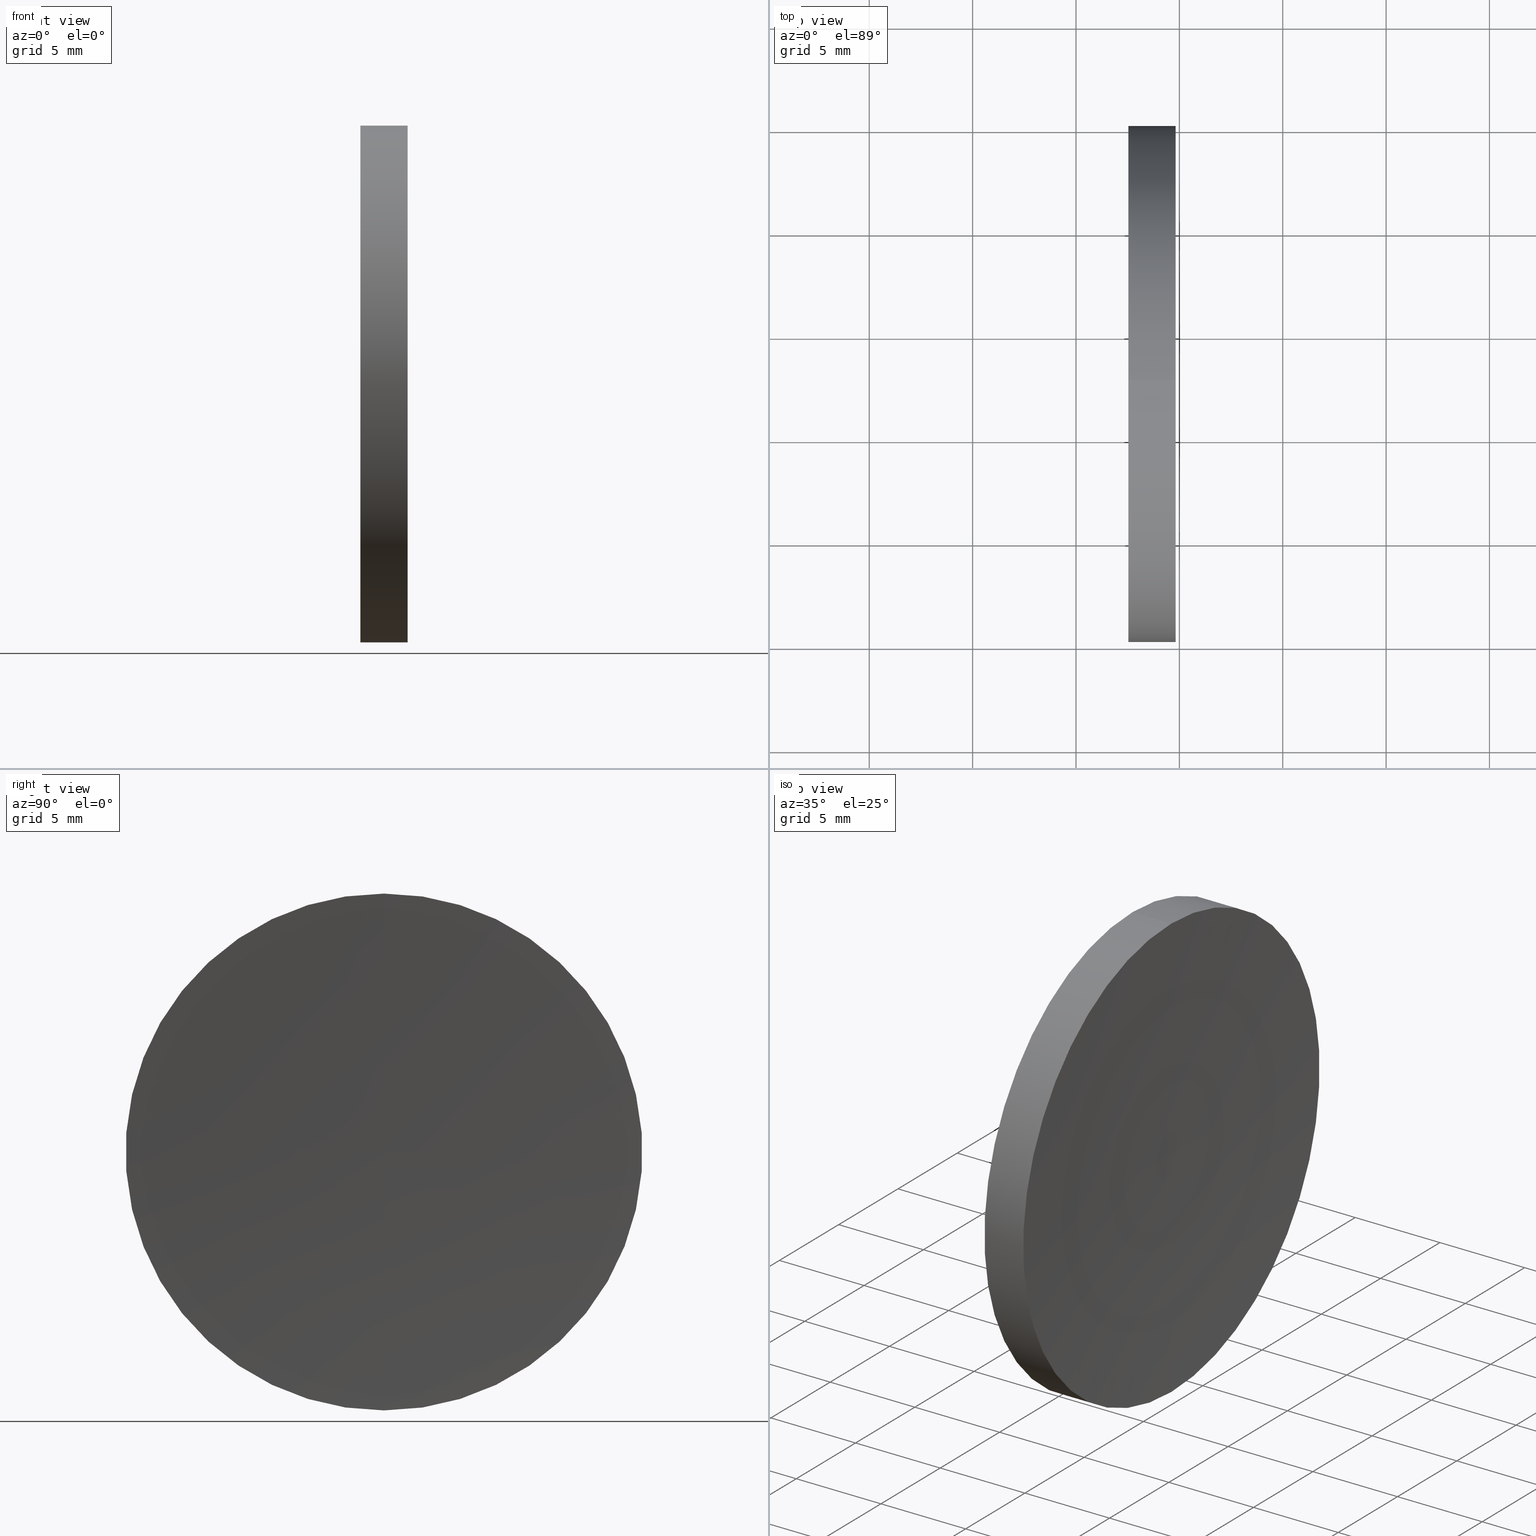
[diagram: canonical four-view strip — front | top / right | iso, engineering-drawing reading convention]
A machine part, canonical four-view strip (front | top / right | iso — engineering-drawing reading convention). The complete STEP part file that produces these views, byte-faithful:
ISO-10303-21;
HEADER;
FILE_DESCRIPTION (( 'STEP AP214' ),
    '1' );
FILE_NAME ('120041.STEP',
    '2019-06-17T06:06:20',
    ( '' ),
    ( '' ),
    'SwSTEP 2.0',
    'SolidWorks 2016',
    '' );
FILE_SCHEMA (( 'AUTOMOTIVE_DESIGN' ));
ENDSEC;

DATA;
#1 = DIRECTION ( 'NONE',  ( -1.000000000000000000, -0.0000000000000000000, -0.0000000000000000000 ) ) ;
#2 = STYLED_ITEM ( 'NONE', ( #79 ), #28 ) ;
#3 = DIRECTION ( 'NONE',  ( -1.000000000000000000, -0.0000000000000000000, -0.0000000000000000000 ) ) ;
#4 = CIRCLE ( 'NONE', #25, 258.1799999999999500 ) ;
#5 =( NAMED_UNIT ( * ) PLANE_ANGLE_UNIT ( ) SI_UNIT ( $, .RADIAN. ) );
#6 = CARTESIAN_POINT ( 'NONE',  ( 317.7121700755695300, 32.61076812922678400, 0.0000000000000000000 ) ) ;
#7 = DIRECTION ( 'NONE',  ( -1.000000000000000000, -0.0000000000000000000, -0.0000000000000000000 ) ) ;
#8 = DIRECTION ( 'NONE',  ( 0.0000000000000000000, 0.0000000000000000000, 1.000000000000000000 ) ) ;
#9 = DIRECTION ( 'NONE',  ( 0.0000000000000000000, 0.0000000000000000000, 1.000000000000000000 ) ) ;
#10 = FILL_AREA_STYLE_COLOUR ( '', #149 ) ;
#11 = CIRCLE ( 'NONE', #154, 12.49999999999999600 ) ;
#12 = DIRECTION ( 'NONE',  ( 0.0000000000000000000, 0.0000000000000000000, 1.000000000000000000 ) ) ;
#13 = AXIS2_PLACEMENT_3D ( 'NONE', #118, #120, #131 ) ;
#14 = FACE_OUTER_BOUND ( 'NONE', #145, .T. ) ;
#15 = DIRECTION ( 'NONE',  ( -1.000000000000000000, -0.0000000000000000000, -0.0000000000000000000 ) ) ;
#16 = VERTEX_POINT ( 'NONE', #114 ) ;
#17 =( NAMED_UNIT ( * ) PLANE_ANGLE_UNIT ( ) SI_UNIT ( $, .RADIAN. ) );
#18 = SURFACE_STYLE_FILL_AREA ( #70 ) ;
#19 =( LENGTH_UNIT ( ) NAMED_UNIT ( * ) SI_UNIT ( .MILLI., .METRE. ) );
#20 = VERTEX_POINT ( 'NONE', #160 ) ;
#21 = CIRCLE ( 'NONE', #64, 12.49999999999999600 ) ;
#22 = APPLICATION_CONTEXT ( 'automotive_design' ) ;
#23 =( LENGTH_UNIT ( ) NAMED_UNIT ( * ) SI_UNIT ( .MILLI., .METRE. ) );
#24 = APPLICATION_PROTOCOL_DEFINITION ( 'draft international standard', 'automotive_design', 1998, #22 ) ;
#25 = AXIS2_PLACEMENT_3D ( 'NONE', #164, #105, #76 ) ;
#26 = FACE_OUTER_BOUND ( 'NONE', #48, .T. ) ;
#27 = ORIENTED_EDGE ( 'NONE', *, *, #147, .T. ) ;
#28 = ADVANCED_BREP_SHAPE_REPRESENTATION ( '120041', ( #104, #86 ), #119 ) ;
#29 = CARTESIAN_POINT ( 'NONE',  ( 57.53233705252611700, 32.61076812922678400, 0.0000000000000000000 ) ) ;
#30 = CARTESIAN_POINT ( 'NONE',  ( 59.82088096594833400, 32.61076812922678400, 0.0000000000000000000 ) ) ;
#31 = AXIS2_PLACEMENT_3D ( 'NONE', #128, #153, #12 ) ;
#32 = VERTEX_POINT ( 'NONE', #46 ) ;
#33 = CARTESIAN_POINT ( 'NONE',  ( 59.82088096594834100, 32.61076812922678400, -12.49999999999963900 ) ) ;
#34 = FILL_AREA_STYLE_COLOUR ( '', #89 ) ;
#35 = ORIENTED_EDGE ( 'NONE', *, *, #148, .F. ) ;
#36 = ORIENTED_EDGE ( 'NONE', *, *, #125, .F. ) ;
#37 = PRODUCT_DEFINITION_CONTEXT ( 'detailed design', #113, 'design' ) ;
#38 = CYLINDRICAL_SURFACE ( 'NONE', #31, 12.49999999999999600 ) ;
#39 = DIRECTION ( 'NONE',  ( -1.000000000000000000, -0.0000000000000000000, -0.0000000000000000000 ) ) ;
#40 = CIRCLE ( 'NONE', #99, 12.49999999999999600 ) ;
#41 = PLANE ( 'NONE',  #92 ) ;
#42 = FACE_OUTER_BOUND ( 'NONE', #162, .T. ) ;
#43 = SURFACE_STYLE_FILL_AREA ( #100 ) ;
#44 = SHAPE_DEFINITION_REPRESENTATION ( #150, #28 ) ;
#45 = DIRECTION ( 'NONE',  ( -1.000000000000000000, -0.0000000000000000000, -0.0000000000000000000 ) ) ;
#46 = CARTESIAN_POINT ( 'NONE',  ( 59.53233705252619500, 32.61076812922678400, 0.0000000000000000000 ) ) ;
#47 =( NAMED_UNIT ( * ) SI_UNIT ( $, .STERADIAN. ) SOLID_ANGLE_UNIT ( ) );
#48 = EDGE_LOOP ( 'NONE', ( #140, #80, #35 ) ) ;
#49 = PRESENTATION_LAYER_ASSIGNMENT (  '', '', ( #54 ) ) ;
#50 = CYLINDRICAL_SURFACE ( 'NONE', #116, 12.49999999999999600 ) ;
#51 = ADVANCED_FACE ( 'NONE', ( #14 ), #56, .F. ) ;
#52 = EDGE_LOOP ( 'NONE', ( #98, #101, #27, #93 ) ) ;
#53 = DIRECTION ( 'NONE',  ( 0.0000000000000000000, 0.0000000000000000000, 1.000000000000000000 ) ) ;
#54 = STYLED_ITEM ( 'NONE', ( #87 ), #104 ) ;
#55 = ORIENTED_EDGE ( 'NONE', *, *, #125, .T. ) ;
#56 = TOROIDAL_SURFACE ( 'NONE', #77, 0.2936327526264770300, 258.1799999999998900 ) ;
#57 = PRODUCT_CONTEXT ( 'NONE', #22, 'mechanical' ) ;
#58 = EDGE_CURVE ( 'NONE', #85, #20, #21, .T. ) ;
#59 = DIRECTION ( 'NONE',  ( -1.000000000000000000, -0.0000000000000000000, -0.0000000000000000000 ) ) ;
#60 = SURFACE_SIDE_STYLE ('',( #43 ) ) ;
#61 = EDGE_LOOP ( 'NONE', ( #55, #126 ) ) ;
#62 = DIRECTION ( 'NONE',  ( -1.000000000000000000, -0.0000000000000000000, -0.0000000000000000000 ) ) ;
#63 = CARTESIAN_POINT ( 'NONE',  ( 56.10091507999716500, 32.61076812922678400, -12.49999999999999600 ) ) ;
#64 = AXIS2_PLACEMENT_3D ( 'NONE', #136, #7, #115 ) ;
#65 = ORIENTED_EDGE ( 'NONE', *, *, #144, .T. ) ;
#66 = CARTESIAN_POINT ( 'NONE',  ( 56.10091507999716500, 32.61076812922678400, 12.49999999999999600 ) ) ;
#67 = EDGE_CURVE ( 'NONE', #16, #127, #11, .T. ) ;
#68 = PRODUCT ( '120041', '120041', '', ( #57 ) ) ;
#69 = UNCERTAINTY_MEASURE_WITH_UNIT (LENGTH_MEASURE( 1.000000000000000100E-005 ), #19, 'distance_accuracy_value', 'NONE');
#70 = FILL_AREA_STYLE ('',( #34 ) ) ;
#71 = DIRECTION ( 'NONE',  ( 0.0000000000000000000, 0.0000000000000000000, 1.000000000000000000 ) ) ;
#72 =( NAMED_UNIT ( * ) SI_UNIT ( $, .STERADIAN. ) SOLID_ANGLE_UNIT ( ) );
#73 = DIRECTION ( 'NONE',  ( 0.0000000000000000000, 0.0000000000000000000, 1.000000000000000000 ) ) ;
#74 = MECHANICAL_DESIGN_GEOMETRIC_PRESENTATION_REPRESENTATION (  '', ( #54 ), #81 ) ;
#75 = CIRCLE ( 'NONE', #13, 258.1799999999999500 ) ;
#76 = DIRECTION ( 'NONE',  ( 0.0000000000000000000, 0.0000000000000000000, -1.000000000000000000 ) ) ;
#77 = AXIS2_PLACEMENT_3D ( 'NONE', #95, #59, #73 ) ;
#78 = SURFACE_STYLE_USAGE ( .BOTH. , #60 ) ;
#79 = PRESENTATION_STYLE_ASSIGNMENT (( #159 ) ) ;
#80 = ORIENTED_EDGE ( 'NONE', *, *, #155, .T. ) ;
#81 =( GEOMETRIC_REPRESENTATION_CONTEXT ( 3 ) GLOBAL_UNCERTAINTY_ASSIGNED_CONTEXT ( ( #69 ) ) GLOBAL_UNIT_ASSIGNED_CONTEXT ( ( #19, #17, #133 ) ) REPRESENTATION_CONTEXT ( 'NONE', 'WORKASPACE' ) );
#82 = ORIENTED_EDGE ( 'NONE', *, *, #148, .T. ) ;
#83 = UNCERTAINTY_MEASURE_WITH_UNIT (LENGTH_MEASURE( 1.000000000000000100E-005 ), #84, 'distance_accuracy_value', 'NONE');
#84 =( LENGTH_UNIT ( ) NAMED_UNIT ( * ) SI_UNIT ( .MILLI., .METRE. ) );
#85 = VERTEX_POINT ( 'NONE', #33 ) ;
#86 = AXIS2_PLACEMENT_3D ( 'NONE', #97, #8, #94 ) ;
#87 = PRESENTATION_STYLE_ASSIGNMENT (( #78 ) ) ;
#88 = CARTESIAN_POINT ( 'NONE',  ( 56.10091507999716500, 32.61076812922678400, 0.0000000000000000000 ) ) ;
#89 = COLOUR_RGB ( '',1.000000000000000000, 1.000000000000000000, 1.000000000000000000 ) ;
#90 = AXIS2_PLACEMENT_3D ( 'NONE', #91, #15, #108 ) ;
#91 = CARTESIAN_POINT ( 'NONE',  ( 57.53233705252611700, 32.61076812922678400, 0.0000000000000000000 ) ) ;
#92 = AXIS2_PLACEMENT_3D ( 'NONE', #29, #109, #143 ) ;
#93 = ORIENTED_EDGE ( 'NONE', *, *, #67, .F. ) ;
#94 = DIRECTION ( 'NONE',  ( 1.000000000000000000, 0.0000000000000000000, 0.0000000000000000000 ) ) ;
#95 = CARTESIAN_POINT ( 'NONE',  ( 317.7121700755695300, 32.61076812922678400, 0.0000000000000000000 ) ) ;
#96 = SURFACE_SIDE_STYLE ('',( #18 ) ) ;
#97 = CARTESIAN_POINT ( 'NONE',  ( 0.0000000000000000000, 0.0000000000000000000, 0.0000000000000000000 ) ) ;
#98 = ORIENTED_EDGE ( 'NONE', *, *, #165, .F. ) ;
#99 = AXIS2_PLACEMENT_3D ( 'NONE', #30, #122, #9 ) ;
#100 = FILL_AREA_STYLE ('',( #10 ) ) ;
#101 = ORIENTED_EDGE ( 'NONE', *, *, #58, .T. ) ;
#102 = ADVANCED_FACE ( 'NONE', ( #26 ), #124, .F. ) ;
#103 = VECTOR ( 'NONE', #1, 1000.000000000000000 ) ;
#104 = MANIFOLD_SOLID_BREP ( '��ת1', #134 ) ;
#105 = DIRECTION ( 'NONE',  ( 0.0000000000000000000, -1.000000000000000000, 0.0000000000000000000 ) ) ;
#106 = PRODUCT_DEFINITION ( 'δ֪', '', #161, #37 ) ;
#107 = FACE_OUTER_BOUND ( 'NONE', #61, .T. ) ;
#108 = DIRECTION ( 'NONE',  ( 0.0000000000000000000, 0.0000000000000000000, 1.000000000000000000 ) ) ;
#109 = DIRECTION ( 'NONE',  ( 1.000000000000000000, 0.0000000000000000000, 0.0000000000000000000 ) ) ;
#110 =( GEOMETRIC_REPRESENTATION_CONTEXT ( 3 ) GLOBAL_UNCERTAINTY_ASSIGNED_CONTEXT ( ( #158 ) ) GLOBAL_UNIT_ASSIGNED_CONTEXT ( ( #23, #138, #72 ) ) REPRESENTATION_CONTEXT ( 'NONE', 'WORKASPACE' ) );
#111 = CARTESIAN_POINT ( 'NONE',  ( 57.53233705252611700, 32.61076812922678400, 0.0000000000000000000 ) ) ;
#112 = VECTOR ( 'NONE', #39, 1000.000000000000000 ) ;
#113 = APPLICATION_CONTEXT ( 'automotive_design' ) ;
#114 = CARTESIAN_POINT ( 'NONE',  ( 57.53233705252611700, 32.61076812922678400, -12.49999999999999600 ) ) ;
#115 = DIRECTION ( 'NONE',  ( 0.0000000000000000000, 0.0000000000000000000, 1.000000000000000000 ) ) ;
#116 = AXIS2_PLACEMENT_3D ( 'NONE', #88, #62, #53 ) ;
#117 = LINE ( 'NONE', #63, #112 ) ;
#118 = CARTESIAN_POINT ( 'NONE',  ( 317.7121700755695300, 32.61076812922678400, -0.2936327526264770300 ) ) ;
#119 =( GEOMETRIC_REPRESENTATION_CONTEXT ( 3 ) GLOBAL_UNCERTAINTY_ASSIGNED_CONTEXT ( ( #83 ) ) GLOBAL_UNIT_ASSIGNED_CONTEXT ( ( #84, #5, #47 ) ) REPRESENTATION_CONTEXT ( 'NONE', 'WORKASPACE' ) );
#120 = DIRECTION ( 'NONE',  ( -0.0000000000000000000, 1.000000000000000000, 1.224646799147353200E-016 ) ) ;
#121 = ORIENTED_EDGE ( 'NONE', *, *, #144, .F. ) ;
#122 = DIRECTION ( 'NONE',  ( -1.000000000000000000, -0.0000000000000000000, -0.0000000000000000000 ) ) ;
#123 = AXIS2_PLACEMENT_3D ( 'NONE', #6, #45, #71 ) ;
#124 = TOROIDAL_SURFACE ( 'NONE', #123, 0.2936327526264770300, 258.1799999999998900 ) ;
#125 = EDGE_CURVE ( 'NONE', #127, #16, #135, .T. ) ;
#126 = ORIENTED_EDGE ( 'NONE', *, *, #67, .T. ) ;
#127 = VERTEX_POINT ( 'NONE', #156 ) ;
#128 = CARTESIAN_POINT ( 'NONE',  ( 56.10091507999716500, 32.61076812922678400, 0.0000000000000000000 ) ) ;
#129 = PRESENTATION_LAYER_ASSIGNMENT (  '', '', ( #2 ) ) ;
#130 = ORIENTED_EDGE ( 'NONE', *, *, #165, .T. ) ;
#131 = DIRECTION ( 'NONE',  ( 0.0000000000000000000, -1.343809339202732700E-016, 1.000000000000000000 ) ) ;
#132 = PRODUCT_RELATED_PRODUCT_CATEGORY ( 'part', '', ( #68 ) ) ;
#133 =( NAMED_UNIT ( * ) SI_UNIT ( $, .STERADIAN. ) SOLID_ANGLE_UNIT ( ) );
#134 = CLOSED_SHELL ( 'NONE', ( #152, #102, #51, #151, #139 ) ) ;
#135 = CIRCLE ( 'NONE', #90, 12.49999999999999600 ) ;
#136 = CARTESIAN_POINT ( 'NONE',  ( 59.82088096594833400, 32.61076812922678400, 0.0000000000000000000 ) ) ;
#137 = APPLICATION_PROTOCOL_DEFINITION ( 'draft international standard', 'automotive_design', 1998, #113 ) ;
#138 =( NAMED_UNIT ( * ) PLANE_ANGLE_UNIT ( ) SI_UNIT ( $, .RADIAN. ) );
#139 = ADVANCED_FACE ( 'NONE', ( #107 ), #41, .F. ) ;
#140 = ORIENTED_EDGE ( 'NONE', *, *, #58, .F. ) ;
#141 = MECHANICAL_DESIGN_GEOMETRIC_PRESENTATION_REPRESENTATION (  '', ( #2 ), #110 ) ;
#142 = FACE_OUTER_BOUND ( 'NONE', #52, .T. ) ;
#143 = DIRECTION ( 'NONE',  ( 0.0000000000000000000, 0.0000000000000000000, -1.000000000000000000 ) ) ;
#144 = EDGE_CURVE ( 'NONE', #20, #85, #40, .T. ) ;
#145 = EDGE_LOOP ( 'NONE', ( #163, #121, #82 ) ) ;
#146 = DIRECTION ( 'NONE',  ( 0.0000000000000000000, 0.0000000000000000000, 1.000000000000000000 ) ) ;
#147 = EDGE_CURVE ( 'NONE', #20, #127, #166, .T. ) ;
#148 = EDGE_CURVE ( 'NONE', #20, #32, #4, .T. ) ;
#149 = COLOUR_RGB ( '',1.000000000000000000, 1.000000000000000000, 1.000000000000000000 ) ;
#150 = PRODUCT_DEFINITION_SHAPE ( 'NONE', 'NONE',  #106 ) ;
#151 = ADVANCED_FACE ( 'NONE', ( #142 ), #38, .T. ) ;
#152 = ADVANCED_FACE ( 'NONE', ( #42 ), #50, .T. ) ;
#153 = DIRECTION ( 'NONE',  ( -1.000000000000000000, -0.0000000000000000000, -0.0000000000000000000 ) ) ;
#154 = AXIS2_PLACEMENT_3D ( 'NONE', #111, #3, #146 ) ;
#155 = EDGE_CURVE ( 'NONE', #85, #32, #75, .T. ) ;
#156 = CARTESIAN_POINT ( 'NONE',  ( 57.53233705252611700, 32.61076812922678400, 12.49999999999999600 ) ) ;
#157 = ORIENTED_EDGE ( 'NONE', *, *, #147, .F. ) ;
#158 = UNCERTAINTY_MEASURE_WITH_UNIT (LENGTH_MEASURE( 1.000000000000000100E-005 ), #23, 'distance_accuracy_value', 'NONE');
#159 = SURFACE_STYLE_USAGE ( .BOTH. , #96 ) ;
#160 = CARTESIAN_POINT ( 'NONE',  ( 59.82088096594834100, 32.61076812922678400, 12.49999999999963900 ) ) ;
#161 = PRODUCT_DEFINITION_FORMATION_WITH_SPECIFIED_SOURCE ( '�κ�', '', #68, .NOT_KNOWN. ) ;
#162 = EDGE_LOOP ( 'NONE', ( #65, #130, #36, #157 ) ) ;
#163 = ORIENTED_EDGE ( 'NONE', *, *, #155, .F. ) ;
#164 = CARTESIAN_POINT ( 'NONE',  ( 317.7121700755695300, 32.61076812922678400, 0.2936327526264770300 ) ) ;
#165 = EDGE_CURVE ( 'NONE', #85, #16, #117, .T. ) ;
#166 = LINE ( 'NONE', #66, #103 ) ;
ENDSEC;
END-ISO-10303-21;
